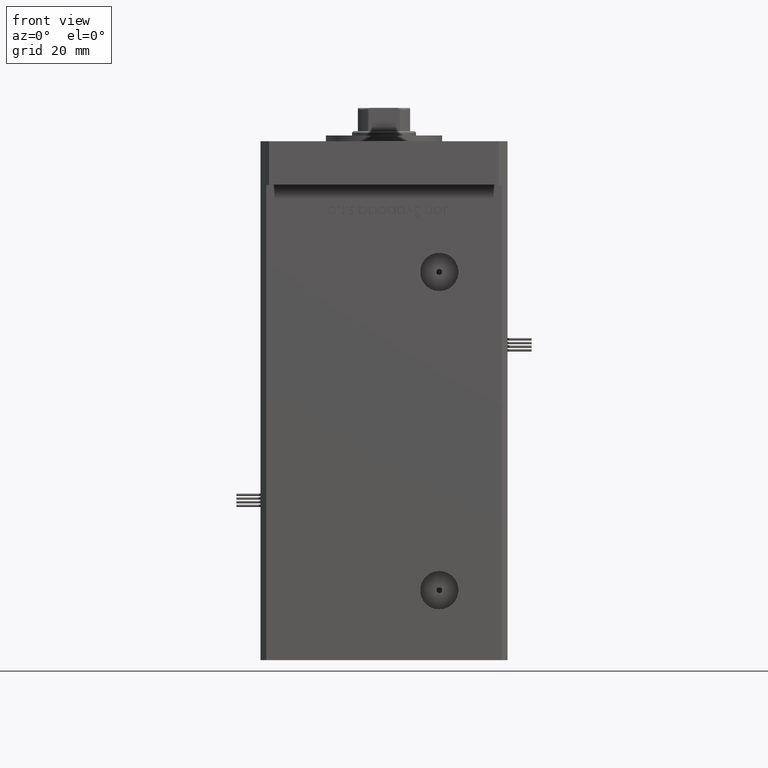
[diagram: clean part render]
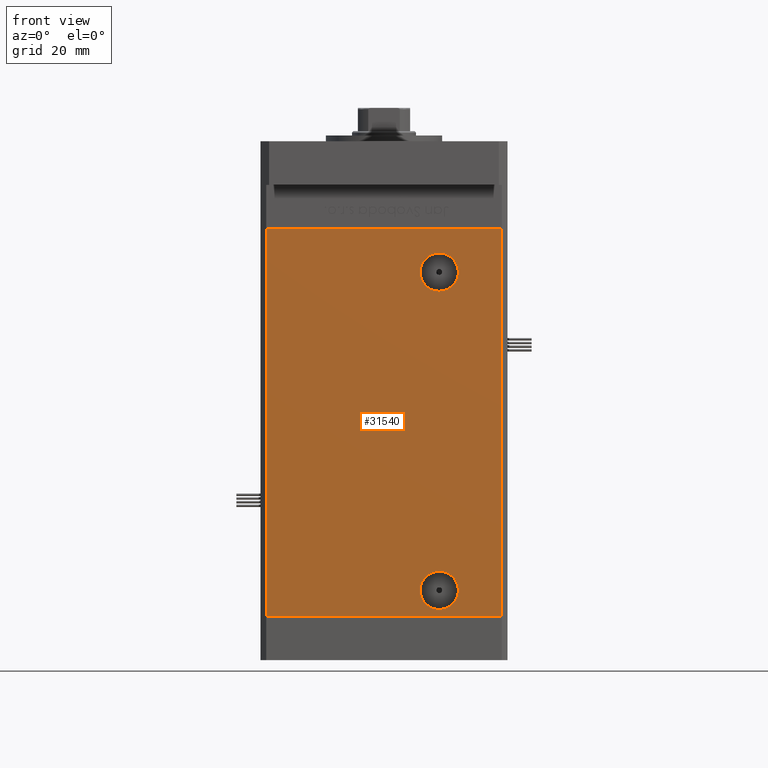
[diagram: same view with one face highlighted and labeled with its STEP entity id]
A machine part, front view. The second image highlights one B-rep face of the part: STEP entity #31540.
In plain terms, the highlighted planar face has unit normal (0, 1, 0).
Its self-contained STEP definition (entity closure, byte-faithful):
#652 = CARTESIAN_POINT ( 'NONE',  ( 18.99999999999997513, -37.50000000000000711, 111.9199999999999875 ) ) ;
#1185 = CIRCLE ( 'NONE', #5762, 6.579999999999998295 ) ;
#1936 = FACE_BOUND ( 'NONE', #16420, .T. ) ;
#2214 = FACE_BOUND ( 'NONE', #45294, .T. ) ;
#3316 = CARTESIAN_POINT ( 'NONE',  ( 40.49999999999998579, -37.50000000000000711, 133.5000000000000000 ) ) ;
#3804 = VERTEX_POINT ( 'NONE', #10198 ) ;
#5380 = PLANE ( 'NONE',  #41975 ) ;
#5627 = ORIENTED_EDGE ( 'NONE', *, *, #32553, .F. ) ;
#5762 = AXIS2_PLACEMENT_3D ( 'NONE', #38688, #25510, #34097 ) ;
#6576 = CARTESIAN_POINT ( 'NONE',  ( 18.99999999999997513, -37.50000000000000711, 125.0799999999999983 ) ) ;
#7154 = DIRECTION ( 'NONE',  ( -0.000000000000000000, -0.000000000000000000, -1.000000000000000000 ) ) ;
#8351 = EDGE_CURVE ( 'NONE', #35132, #21890, #28924, .T. ) ;
#9537 = ORIENTED_EDGE ( 'NONE', *, *, #51364, .F. ) ;
#9602 = CARTESIAN_POINT ( 'NONE',  ( 40.49999999999998579, -37.50000000000000711, 133.5000000000000000 ) ) ;
#9984 = VECTOR ( 'NONE', #26519, 1000.000000000000000 ) ;
#10198 = CARTESIAN_POINT ( 'NONE',  ( 40.49999999999998579, -37.50000000000000711, 0.000000000000000000 ) ) ;
#10358 = CARTESIAN_POINT ( 'NONE',  ( 18.99999999999997513, -37.50000000000000711, 118.5000000000000000 ) ) ;
#10476 = LINE ( 'NONE', #35984, #31711 ) ;
#10728 = CARTESIAN_POINT ( 'NONE',  ( 18.99999999999997513, -37.50000000000000711, 118.5000000000000000 ) ) ;
#11089 = CARTESIAN_POINT ( 'NONE',  ( -40.49999999999998579, -37.50000000000000711, 133.5000000000000000 ) ) ;
#12698 = EDGE_CURVE ( 'NONE', #56160, #43583, #1185, .T. ) ;
#14932 = DIRECTION ( 'NONE',  ( 0.000000000000000000, 0.000000000000000000, -1.000000000000000000 ) ) ;
#16420 = EDGE_LOOP ( 'NONE', ( #31698, #43716 ) ) ;
#16870 = EDGE_CURVE ( 'NONE', #43583, #56160, #27881, .T. ) ;
#19879 = DIRECTION ( 'NONE',  ( -0.000000000000000000, 1.000000000000000000, -0.000000000000000000 ) ) ;
#21161 = CARTESIAN_POINT ( 'NONE',  ( 18.99999999999998934, -37.50000000000000711, 2.419999999999995932 ) ) ;
#21570 = CARTESIAN_POINT ( 'NONE',  ( -40.49999999999998579, -37.50000000000000711, 0.000000000000000000 ) ) ;
#21597 = DIRECTION ( 'NONE',  ( 0.000000000000000000, 0.000000000000000000, -1.000000000000000000 ) ) ;
#21879 = DIRECTION ( 'NONE',  ( 0.000000000000000000, -1.000000000000000000, 0.000000000000000000 ) ) ;
#21890 = VERTEX_POINT ( 'NONE', #21570 ) ;
#22497 = LINE ( 'NONE', #9602, #9984 ) ;
#22514 = CARTESIAN_POINT ( 'NONE',  ( 18.99999999999998934, -37.50000000000000711, 15.57999999999999297 ) ) ;
#24010 = LINE ( 'NONE', #11089, #35614 ) ;
#25510 = DIRECTION ( 'NONE',  ( 0.000000000000000000, -1.000000000000000000, 0.000000000000000000 ) ) ;
#26392 = AXIS2_PLACEMENT_3D ( 'NONE', #10728, #19879, #28225 ) ;
#26519 = DIRECTION ( 'NONE',  ( -0.000000000000000000, -0.000000000000000000, -1.000000000000000000 ) ) ;
#27372 = EDGE_CURVE ( 'NONE', #54033, #30606, #54671, .T. ) ;
#27554 = VECTOR ( 'NONE', #7154, 1000.000000000000000 ) ;
#27881 = CIRCLE ( 'NONE', #42515, 6.579999999999998295 ) ;
#28225 = DIRECTION ( 'NONE',  ( 0.000000000000000000, 0.000000000000000000, -1.000000000000000000 ) ) ;
#28924 = LINE ( 'NONE', #46677, #27554 ) ;
#29825 = VERTEX_POINT ( 'NONE', #3316 ) ;
#30606 = VERTEX_POINT ( 'NONE', #6576 ) ;
#30808 = EDGE_CURVE ( 'NONE', #30606, #54033, #45625, .T. ) ;
#31540 = ADVANCED_FACE ( 'NONE', ( #2214, #40898, #1936 ), #5380, .F. ) ;
#31698 = ORIENTED_EDGE ( 'NONE', *, *, #27372, .T. ) ;
#31711 = VECTOR ( 'NONE', #50033, 1000.000000000000000 ) ;
#31761 = AXIS2_PLACEMENT_3D ( 'NONE', #10358, #54213, #14932 ) ;
#32553 = EDGE_CURVE ( 'NONE', #29825, #3804, #22497, .T. ) ;
#32875 = DIRECTION ( 'NONE',  ( 1.000000000000000000, 0.000000000000000000, 0.000000000000000000 ) ) ;
#33346 = CARTESIAN_POINT ( 'NONE',  ( -40.49999999999998579, -37.50000000000000711, 133.5000000000000000 ) ) ;
#34097 = DIRECTION ( 'NONE',  ( 0.000000000000000000, 0.000000000000000000, -1.000000000000000000 ) ) ;
#34206 = CARTESIAN_POINT ( 'NONE',  ( 18.99999999999998934, -37.50000000000000711, 8.999999999999994671 ) ) ;
#35132 = VERTEX_POINT ( 'NONE', #33346 ) ;
#35614 = VECTOR ( 'NONE', #32875, 1000.000000000000000 ) ;
#35676 = ORIENTED_EDGE ( 'NONE', *, *, #16870, .F. ) ;
#35984 = CARTESIAN_POINT ( 'NONE',  ( -40.49999999999998579, -37.50000000000000711, 0.000000000000000000 ) ) ;
#36362 = ORIENTED_EDGE ( 'NONE', *, *, #12698, .F. ) ;
#38688 = CARTESIAN_POINT ( 'NONE',  ( 18.99999999999998934, -37.50000000000000711, 8.999999999999994671 ) ) ;
#39477 = EDGE_LOOP ( 'NONE', ( #51588, #5627, #9537, #48981 ) ) ;
#40898 = FACE_OUTER_BOUND ( 'NONE', #39477, .T. ) ;
#41975 = AXIS2_PLACEMENT_3D ( 'NONE', #45752, #45193, #54078 ) ;
#42515 = AXIS2_PLACEMENT_3D ( 'NONE', #34206, #21879, #21597 ) ;
#43583 = VERTEX_POINT ( 'NONE', #22514 ) ;
#43716 = ORIENTED_EDGE ( 'NONE', *, *, #30808, .T. ) ;
#44744 = EDGE_CURVE ( 'NONE', #21890, #3804, #10476, .T. ) ;
#45193 = DIRECTION ( 'NONE',  ( 0.000000000000000000, 1.000000000000000000, 0.000000000000000000 ) ) ;
#45294 = EDGE_LOOP ( 'NONE', ( #36362, #35676 ) ) ;
#45625 = CIRCLE ( 'NONE', #26392, 6.580000000000002736 ) ;
#45752 = CARTESIAN_POINT ( 'NONE',  ( -40.49999999999998579, -37.50000000000000711, 133.5000000000000000 ) ) ;
#46677 = CARTESIAN_POINT ( 'NONE',  ( -40.49999999999998579, -37.50000000000000711, 133.5000000000000000 ) ) ;
#48981 = ORIENTED_EDGE ( 'NONE', *, *, #8351, .T. ) ;
#50033 = DIRECTION ( 'NONE',  ( 1.000000000000000000, 0.000000000000000000, 0.000000000000000000 ) ) ;
#51364 = EDGE_CURVE ( 'NONE', #35132, #29825, #24010, .T. ) ;
#51588 = ORIENTED_EDGE ( 'NONE', *, *, #44744, .T. ) ;
#54033 = VERTEX_POINT ( 'NONE', #652 ) ;
#54078 = DIRECTION ( 'NONE',  ( 0.000000000000000000, -0.000000000000000000, 1.000000000000000000 ) ) ;
#54213 = DIRECTION ( 'NONE',  ( -0.000000000000000000, 1.000000000000000000, -0.000000000000000000 ) ) ;
#54671 = CIRCLE ( 'NONE', #31761, 6.580000000000002736 ) ;
#56160 = VERTEX_POINT ( 'NONE', #21161 ) ;